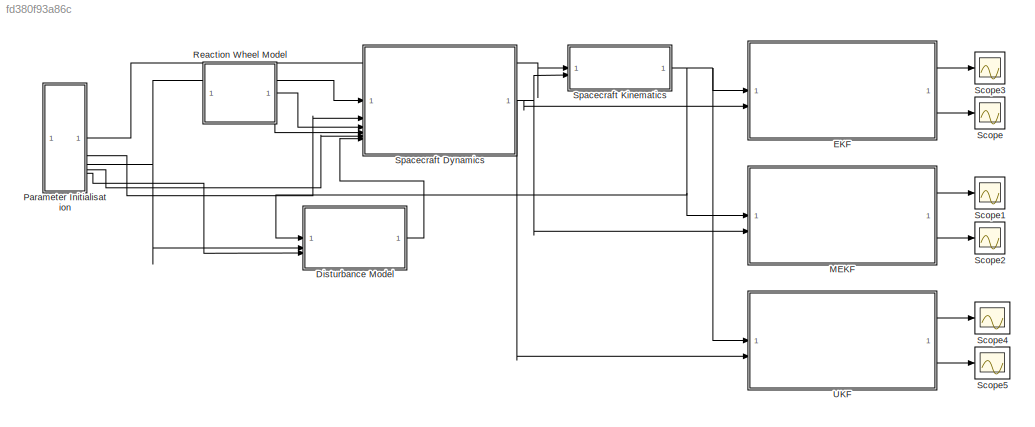
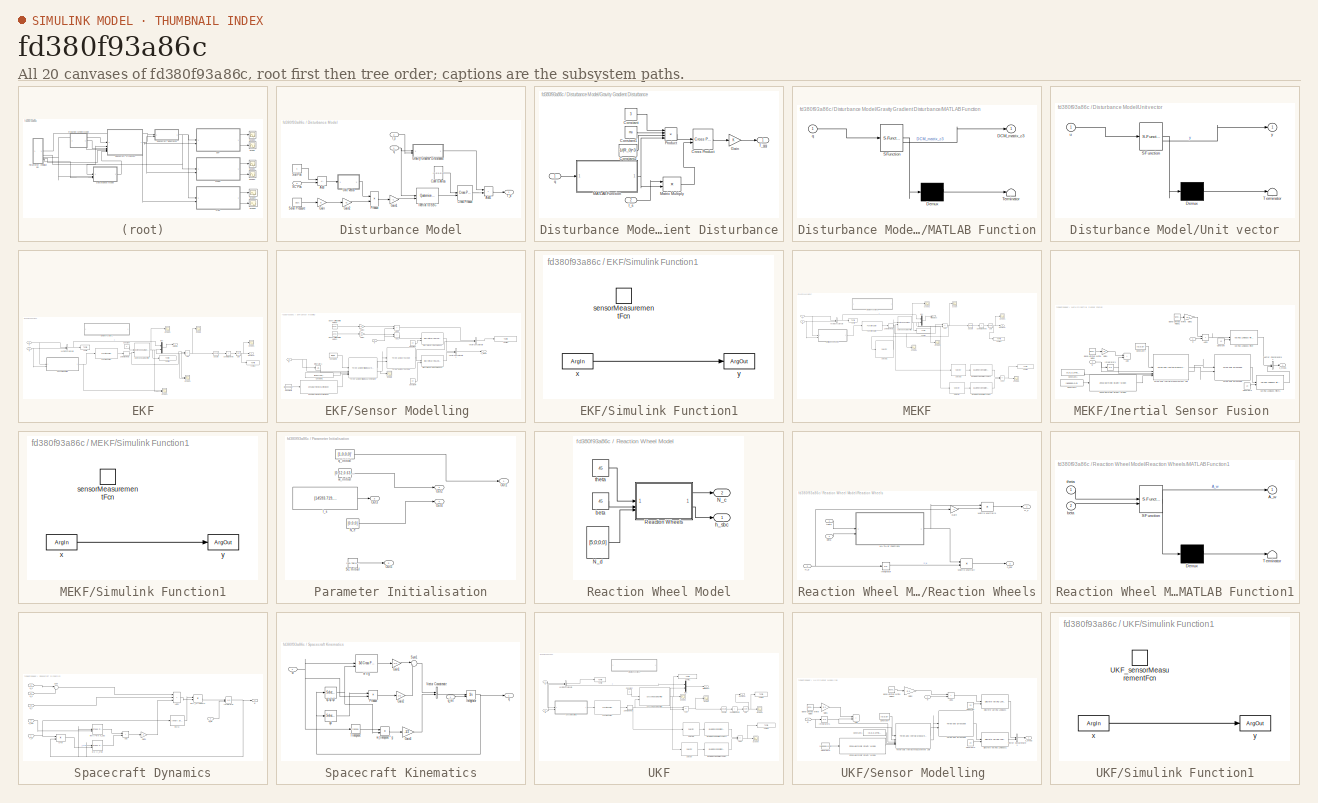
[diagram: thumbnail index - all 20 canvases of the model, root first then tree order]
MODEL slx_fd380f93a86c
KIND model
CONFIG AbsTol = auto
CONFIG EnableMultiTasking = off
CONFIG FixedStep = auto
CONFIG MaxStep = auto
CONFIG MinStep = auto
CONFIG RelTol = 1e-3
CONFIG SampleTimeConstraint = Unconstrained
CONFIG SolverName = VariableStepAuto
CONFIG StartTime = 0.0
CONFIG StopTime = 300
WORKSPACE source: mxarray member
WORKSPACE R_0 = 80000
WORKSPACE Ts = 0.01
WORKSPACE mu = 398600.435507
BLOCK [SubSystem] Disturbance Model
BLOCK [Sum] Disturbance Model/Add
  IconShape = rectangular
  Inputs = +-
BLOCK [Sum] Disturbance Model/Add1
  IconShape = rectangular
BLOCK [Constant] Disturbance Model/CoM to Area
  Value = [0.5;0.5;0]
  VectorParams1D = off
BLOCK [Reference] Disturbance Model/Cross Product  REF=matrix_library/Cross Product
  LibrarySourceBlock = simulink/Matrix\nOperations/Cross Product
  SourceBlock = matrix_library/Cross Product
  SourceType = CrossProduct
BLOCK [Gain] Disturbance Model/Gain
  Gain = q
BLOCK [Gain] Disturbance Model/Gain1
  Gain = -1
BLOCK [Gain] Disturbance Model/Gain2
  Gain = As
BLOCK [SubSystem] Disturbance Model/Gravity Gradient Disturbance
BLOCK [Constant] Disturbance Model/Gravity Gradient Disturbance/Constant
  Value = 3
BLOCK [Constant] Disturbance Model/Gravity Gradient Disturbance/Constant1
  Value = mu
BLOCK [Constant] Disturbance Model/Gravity Gradient Disturbance/Constant2
  Value = 1/(R_0)^3
BLOCK [Reference] Disturbance Model/Gravity Gradient Disturbance/Cross Product  REF=matrix_library/Cross Product
  LibrarySourceBlock = simulink/Matrix\nOperations/Cross Product
  SourceBlock = matrix_library/Cross Product
  SourceType = CrossProduct
BLOCK [Gain] Disturbance Model/Gravity Gradient Disturbance/Gain
  Multiplication = Matrix(K*u)
BLOCK [Inport] Disturbance Model/Gravity Gradient Disturbance/I_s
  Port = 2
BLOCK [SubSystem] Disturbance Model/Gravity Gradient Disturbance/MATLAB Function
  ErrorFcn = Stateflow.Translate.translate
  LibrarySourceBlock = simulink/User-Defined\nFunctions/MATLAB Function
  PermitHierarchicalResolution = ExplicitOnly
  SFBlockType = MATLAB Function
  TreatAsAtomicUnit = on
BLOCK [Demux] Disturbance Model/Gravity Gradient Disturbance/MATLAB Function/ Demux 
  Outputs = 1
BLOCK [S-Function] Disturbance Model/Gravity Gradient Disturbance/MATLAB Function/ SFunction 
  EnableBusSupport = on
  FunctionName = sf_sfun
  PortCounts = [1 2]
  SFcnIsStateOwnerBlock = off
  SFunctionDeploymentMode = off
  Tag = Stateflow S-Function 2
BLOCK [Terminator] Disturbance Model/Gravity Gradient Disturbance/MATLAB Function/ Terminator 
BLOCK [Outport] Disturbance Model/Gravity Gradient Disturbance/MATLAB Function/DCM_matrix_c3
BLOCK [Inport] Disturbance Model/Gravity Gradient Disturbance/MATLAB Function/q
BLOCK [Product] Disturbance Model/Gravity Gradient Disturbance/Matrix Multiply
  Multiplication = Matrix(*)
BLOCK [Product] Disturbance Model/Gravity Gradient Disturbance/Product
  Inputs = 4
BLOCK [Outport] Disturbance Model/Gravity Gradient Disturbance/T_gg
BLOCK [Inport] Disturbance Model/Gravity Gradient Disturbance/q
BLOCK [Inport] Disturbance Model/I_s
  Port = 2
BLOCK [Reference] Disturbance Model/Inertial to SBC  REF=aerolibutil/Quaternion
Rotation
  SourceBlock = aerolibutil/Quaternion\nRotation
  SourceType = Quaternion Rotation
BLOCK [Product] Disturbance Model/Product
BLOCK [Inport] Disturbance Model/SC Pos
  Port = 3
BLOCK [Constant] Disturbance Model/Solar Pressure
  Value = SC/c
BLOCK [Constant] Disturbance Model/Sun Pos
BLOCK [Outport] Disturbance Model/T_d
BLOCK [SubSystem] Disturbance Model/Unit vector
  ErrorFcn = Stateflow.Translate.translate
  LibrarySourceBlock = simulink/User-Defined\nFunctions/MATLAB Function
  PermitHierarchicalResolution = ExplicitOnly
  SFBlockType = MATLAB Function
  TreatAsAtomicUnit = on
BLOCK [Demux] Disturbance Model/Unit vector/ Demux 
  Outputs = 1
BLOCK [S-Function] Disturbance Model/Unit vector/ SFunction 
  EnableBusSupport = on
  FunctionName = sf_sfun
  PortCounts = [1 2]
  SFcnIsStateOwnerBlock = off
  SFunctionDeploymentMode = off
  Tag = Stateflow S-Function 3
BLOCK [Terminator] Disturbance Model/Unit vector/ Terminator 
BLOCK [Inport] Disturbance Model/Unit vector/u
BLOCK [Outport] Disturbance Model/Unit vector/y
BLOCK [Inport] Disturbance Model/q
BLOCK [SubSystem] EKF
BLOCK [Sum] EKF/Add
  IconShape = rectangular
  Inputs = +-
BLOCK [Constant] EKF/Constant
  Value = 0
BLOCK [Reference] EKF/Extended Kalman Filter  REF=sharedTrackingLibrary/Extended Kalman Filter
  LibrarySourceBlock = cstblocks/State Estimation/Extended Kalman Filter
  SourceBlock = sharedTrackingLibrary/Extended Kalman Filter
  SourceType = Extended Kalman Filter
BLOCK [FunctionCaller] EKF/Function Caller
  FunctionPrototype = y = sensorMeasurementFcn(x)
  InputArgumentSpecifications = <Enter example>
  OutputArgumentSpecifications = <Enter example>
BLOCK [Mux] EKF/Mux
  DisplayOption = bar
  Inputs = 2
BLOCK [Outport] EKF/Outputs
BLOCK [Outport] EKF/Residual
  Port = 2
BLOCK [Scope] EKF/Scope
  Floating = off
  NumInputPorts = 1
  ScopeSpecificationString = Simulink.scopes.TimeScopeBlockCfg('CurrentConfiguration', extmgr.ConfigurationSet(extmgr.Configuration('Core','General UI',true),extmgr.Configuration('Core','Source UI',true),extmgr.Configuration('Sources','WiredSimulink',true,'DataLoggingVariableName','ScopeData2'),extmgr.Configuration('Visuals','Time Domain',true,'SerializedDisplays',{struct('MinYLimReal','-0.01301','MaxYLimReal','0.01897','YLab...<+1651ch>
BLOCK [Scope] EKF/Scope1
  Floating = off
  NumInputPorts = 1
  ScopeSpecificationString = Simulink.scopes.TimeScopeBlockCfg('CurrentConfiguration', extmgr.ConfigurationSet(extmgr.Configuration('Core','General UI',true),extmgr.Configuration('Core','Source UI',true),extmgr.Configuration('Sources','WiredSimulink',true,'DataLoggingVariableName','ScopeData3'),extmgr.Configuration('Visuals','Time Domain',true,'SerializedDisplays',{struct('MinYLimReal','-0.000001','MaxYLimReal','0.000013','YL...<+1455ch>
BLOCK [Scope] EKF/Scope2
  Floating = off
  NumInputPorts = 1
  ScopeSpecificationString = Simulink.scopes.TimeScopeBlockCfg('CurrentConfiguration', extmgr.ConfigurationSet(extmgr.Configuration('Core','General UI',true),extmgr.Configuration('Core','Source UI',true),extmgr.Configuration('Sources','WiredSimulink',true,'DataLoggingVariableName','ScopeData4'),extmgr.Configuration('Visuals','Time Domain',true,'SerializedDisplays',{struct('MinYLimReal','-3.69362','MaxYLimReal','1.74866','YLab...<+1709ch>
BLOCK [Scope] EKF/Scope3
  Floating = off
  NumInputPorts = 2
  ScopeSpecificationString = Simulink.scopes.TimeScopeBlockCfg('CurrentConfiguration', extmgr.ConfigurationSet(extmgr.Configuration('Core','General UI',true),extmgr.Configuration('Core','Source UI',true),extmgr.Configuration('Sources','WiredSimulink',true,'DataLoggingVariableName','ScopeData1'),extmgr.Configuration('Visuals','Time Domain',true,'SerializedDisplays',{struct('MinYLimReal','-3.82312','MaxYLimReal','1.76305','YLab...<+2037ch>
BLOCK [Scope] EKF/Scope4
  Floating = off
  NumInputPorts = 2
  ScopeSpecificationString = Simulink.scopes.TimeScopeBlockCfg('CurrentConfiguration', extmgr.ConfigurationSet(extmgr.Configuration('Core','General UI',true),extmgr.Configuration('Core','Source UI',true),extmgr.Configuration('Sources','WiredSimulink',true,'DataLoggingVariableName','ScopeData2'),extmgr.Configuration('Visuals','Time Domain',true,'SerializedDisplays',{struct('MinYLimReal','-1.47581','MaxYLimReal','1.45351','YLab...<+2031ch>
BLOCK [SubSystem] EKF/Sensor Modelling 
BLOCK [Sum] EKF/Sensor Modelling /Add1
  IconShape = rectangular
BLOCK [Sum] EKF/Sensor Modelling /Add2
  IconShape = rectangular
BLOCK [Reference] EKF/Sensor Modelling /Band-Limited White Noise1  REF=simulink/Sources/Band-Limited
White Noise
  SourceBlock = simulink/Sources/Band-Limited\nWhite Noise
  SourceType = Band-Limited White Noise.
BLOCK [Reference] EKF/Sensor Modelling /Band-Limited White Noise2  REF=simulink/Sources/Band-Limited
White Noise
  SourceBlock = simulink/Sources/Band-Limited\nWhite Noise
  SourceType = Band-Limited White Noise.
BLOCK [Constant] EKF/Sensor Modelling /Constant
  Value = 20
BLOCK [Constant] EKF/Sensor Modelling /Constant1
  Value = [6.1847756,0.0016052,-2.59e-05]'
BLOCK [Constant] EKF/Sensor Modelling /Constant2
  Value = [800000,0,0]
BLOCK [Constant] EKF/Sensor Modelling /Constant3
  Value = [0,0,0]'
BLOCK [Constant] EKF/Sensor Modelling /Constant4
  Value = 20
BLOCK [Reference] EKF/Sensor Modelling /Discrete Varying Lowpass  REF=cstblocks/Linear Parameter Varying/Discrete Varying Lowpass
  SourceBlock = cstblocks/Linear Parameter Varying/Discrete Varying Lowpass
  SourceType = Discrete Varying Lowpass
BLOCK [Reference] EKF/Sensor Modelling /Discrete Varying Lowpass1  REF=cstblocks/Linear Parameter Varying/Discrete Varying Lowpass
  SourceBlock = cstblocks/Linear Parameter Varying/Discrete Varying Lowpass
  SourceType = Discrete Varying Lowpass
BLOCK [Gain] EKF/Sensor Modelling /Gain2
  Gain = 0.2
BLOCK [Gain] EKF/Sensor Modelling /Gain3
  Gain = 0.4
BLOCK [Integrator] EKF/Sensor Modelling /Integrator1
BLOCK [Scope] EKF/Sensor Modelling /Scope
  Floating = off
  NumInputPorts = 1
  ScopeSpecificationString = Simulink.scopes.TimeScopeBlockCfg('CurrentConfiguration', extmgr.ConfigurationSet(extmgr.Configuration('Core','General UI',true),extmgr.Configuration('Core','Source UI',true),extmgr.Configuration('Sources','WiredSimulink',true,'DataLoggingVariableName','ScopeData1'),extmgr.Configuration('Visuals','Time Domain',true),extmgr.Configuration('Tools','Plot Navigation',true),extmgr.Configuration('Tools',...<+40ch>
BLOCK [Reference] EKF/Sensor Modelling /Three-axis Gyroscope  REF=aerolibnav/Three-axis Gyroscope
  SourceBlock = aerolibnav/Three-axis Gyroscope
  SourceType = Three-axis Gyroscope
BLOCK [Reference] EKF/Sensor Modelling /Three-axis Inertial Measurement Unit  REF=aerolibnav/Three-axis Inertial
Measurement Unit
  SourceBlock = aerolibnav/Three-axis Inertial\nMeasurement Unit
  SourceType = Three-axis Inertial Measurement Unit
BLOCK [ToFile] EKF/Sensor Modelling /To File2
  Filename = EKF_measurement_data.mat
BLOCK [Concatenate] EKF/Sensor Modelling /Vector Concatenate
BLOCK [Concatenate] EKF/Sensor Modelling /Vector Concatenate1
BLOCK [Reference] EKF/Sensor Modelling /Zonal Harmonic Gravity Model  REF=aerolibgravity2/Zonal Harmonic Gravity Model
  SourceBlock = aerolibgravity2/Zonal Harmonic Gravity Model
  SourceType = Zonal Harmonic Gravity Model
BLOCK [Inport] EKF/Sensor Modelling /q
BLOCK [Inport] EKF/Sensor Modelling /w
  Port = 2
BLOCK [Outport] EKF/Sensor Modelling /x_meas
BLOCK [SubSystem] EKF/Simulink Function1
  TreatAsAtomicUnit = on
BLOCK [TriggerPort] EKF/Simulink Function1/sensorMeasurementFcn
  FunctionName = sensorMeasurementFcn
  FunctionVisibility = scoped
  IsSimulinkFunction = on
  StatesWhenEnabling = held
  TriggerType = function-call
  VariantControl = (inherit)
BLOCK [ArgIn] EKF/Simulink Function1/x
  ArgumentName = x
  DisableCoverage = on
  PortDimensions = 7
BLOCK [ArgOut] EKF/Simulink Function1/y
  ArgumentName = y
  DisableCoverage = on
  PortDimensions = 7
BLOCK [Sqrt] EKF/Sqrt
BLOCK [Math] EKF/Square
  Operator = square
BLOCK [Sum] EKF/Sum of Elements
  IconShape = rectangular
  Inputs = +
BLOCK [ToFile] EKF/To File
  Filename = EKF_states.mat
BLOCK [ToFile] EKF/To File1
  Filename = EKF_estimated_states.mat
BLOCK [ToFile] EKF/To File2
  Filename = EKF_residual.mat
BLOCK [Concatenate] EKF/Vector Concatenate
BLOCK [ZeroOrderHold] EKF/Zero-Order Hold
  SampleTime = 0.01
BLOCK [Inport] EKF/q
BLOCK [Inport] EKF/w
  Port = 2
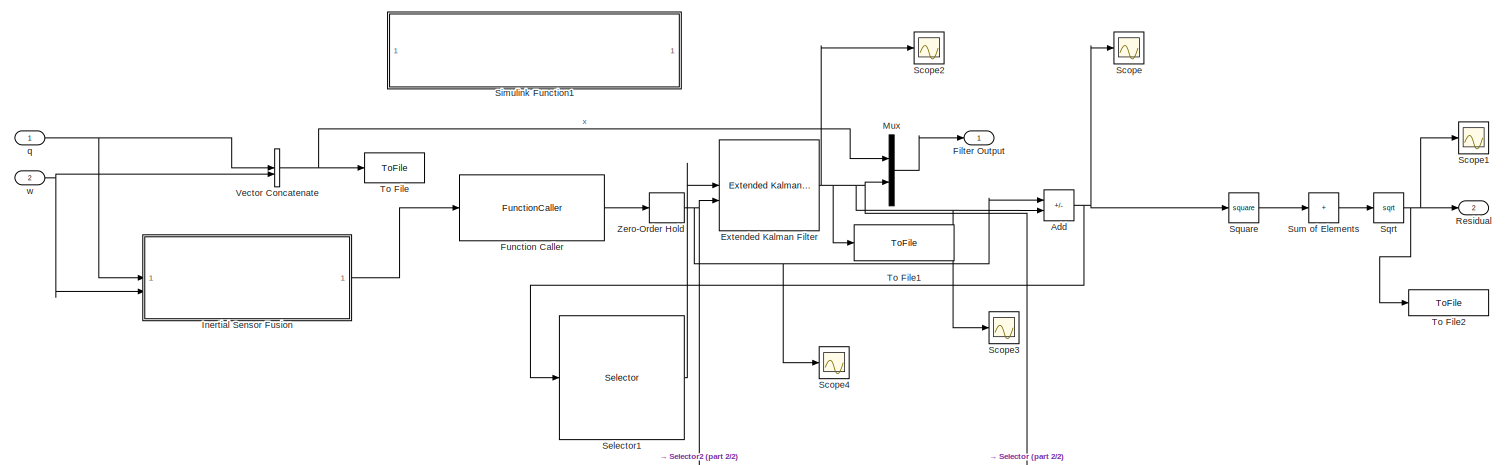
[diagram: MEKF - part 1/2, full width, middle band]
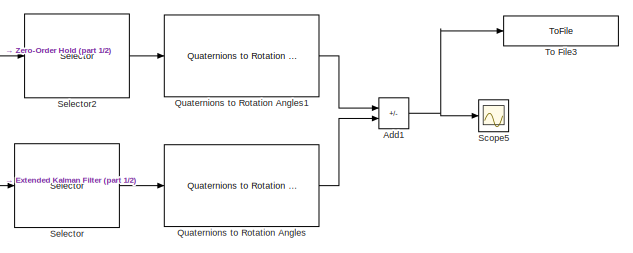
[diagram: MEKF - part 2/2, bottom right region]
BLOCK [SubSystem] MEKF
BLOCK [Sum] MEKF/Add
  IconShape = rectangular
  Inputs = +-
BLOCK [Sum] MEKF/Add1
  IconShape = rectangular
  Inputs = +-
BLOCK [Reference] MEKF/Extended Kalman Filter  REF=sharedTrackingLibrary/Extended Kalman Filter
  LibrarySourceBlock = cstblocks/State Estimation/Extended Kalman Filter
  SourceBlock = sharedTrackingLibrary/Extended Kalman Filter
  SourceType = Extended Kalman Filter
BLOCK [Outport] MEKF/Filter Output
BLOCK [FunctionCaller] MEKF/Function Caller
  FunctionPrototype = y = sensorMeasurementFcn(x)
  InputArgumentSpecifications = <Enter example>
  OutputArgumentSpecifications = <Enter example>
BLOCK [SubSystem] MEKF/Inertial Sensor Fusion 
BLOCK [Sum] MEKF/Inertial Sensor Fusion /Add
  IconShape = rectangular
BLOCK [Sum] MEKF/Inertial Sensor Fusion /Add1
  IconShape = rectangular
BLOCK [Reference] MEKF/Inertial Sensor Fusion /Band-Limited White Noise  REF=simulink/Sources/Band-Limited
White Noise
  SourceBlock = simulink/Sources/Band-Limited\nWhite Noise
  SourceType = Band-Limited White Noise.
BLOCK [Reference] MEKF/Inertial Sensor Fusion /Band-Limited White Noise1  REF=simulink/Sources/Band-Limited
White Noise
  SourceBlock = simulink/Sources/Band-Limited\nWhite Noise
  SourceType = Band-Limited White Noise.
BLOCK [Constant] MEKF/Inertial Sensor Fusion /Constant
  Value = 10
BLOCK [Constant] MEKF/Inertial Sensor Fusion /Constant1
  Value = [0,0,3.2778]'
BLOCK [Constant] MEKF/Inertial Sensor Fusion /Constant2
  Value = [800000,0,0]
BLOCK [Constant] MEKF/Inertial Sensor Fusion /Constant3
  Value = 10
BLOCK [Constant] MEKF/Inertial Sensor Fusion /Constant4
  Value = [0,0,0]'
BLOCK [Gain] MEKF/Inertial Sensor Fusion /Gain1
  Gain = 0.1
BLOCK [Gain] MEKF/Inertial Sensor Fusion /Gain2
  Gain = 0.1
BLOCK [Integrator] MEKF/Inertial Sensor Fusion /Integrator1
BLOCK [Reference] MEKF/Inertial Sensor Fusion /Three-axis Gyroscope  REF=aerolibnav/Three-axis Gyroscope
  SourceBlock = aerolibnav/Three-axis Gyroscope
  SourceType = Three-axis Gyroscope
BLOCK [Reference] MEKF/Inertial Sensor Fusion /Three-axis Inertial Measurement Unit  REF=aerolibnav/Three-axis Inertial
Measurement Unit
  SourceBlock = aerolibnav/Three-axis Inertial\nMeasurement Unit
  SourceType = Three-axis Inertial Measurement Unit
BLOCK [Reference] MEKF/Inertial Sensor Fusion /Varying Lowpass Filter  REF=cstblocks/Linear Parameter Varying/Varying Lowpass Filter
  SourceBlock = cstblocks/Linear Parameter Varying/Varying Lowpass Filter
  SourceType = Varying Lowpass Filter
BLOCK [Reference] MEKF/Inertial Sensor Fusion /Varying Lowpass Filter1  REF=cstblocks/Linear Parameter Varying/Varying Lowpass Filter
  SourceBlock = cstblocks/Linear Parameter Varying/Varying Lowpass Filter
  SourceType = Varying Lowpass Filter
BLOCK [Concatenate] MEKF/Inertial Sensor Fusion /Vector Concatenate1
BLOCK [Reference] MEKF/Inertial Sensor Fusion /Zonal Harmonic Gravity Model  REF=aerolibgravity2/Zonal Harmonic Gravity Model
  SourceBlock = aerolibgravity2/Zonal Harmonic Gravity Model
  SourceType = Zonal Harmonic Gravity Model
BLOCK [Inport] MEKF/Inertial Sensor Fusion /q
BLOCK [Inport] MEKF/Inertial Sensor Fusion /w
  Port = 2
BLOCK [Outport] MEKF/Inertial Sensor Fusion /x_meas
BLOCK [Mux] MEKF/Mux
  DisplayOption = bar
  Inputs = 2
BLOCK [Reference] MEKF/Quaternions to Rotation Angles  REF=sharedtransform/Quaternions to Rotation Angles
  AttributesFormatString = Rotation Order: %<rotationOrder>
  LibrarySourceBlock = aerolibtransform2/Quaternions to Rotation Angles
  SourceBlock = sharedtransform/Quaternions to Rotation Angles
  SourceType = Quat2Ang
BLOCK [Reference] MEKF/Quaternions to Rotation Angles1  REF=sharedtransform/Quaternions to Rotation Angles
  AttributesFormatString = Rotation Order: %<rotationOrder>
  LibrarySourceBlock = aerolibtransform2/Quaternions to Rotation Angles
  SourceBlock = sharedtransform/Quaternions to Rotation Angles
  SourceType = Quat2Ang
BLOCK [Outport] MEKF/Residual
  Port = 2
BLOCK [Scope] MEKF/Scope
  Floating = off
  NumInputPorts = 1
  ScopeSpecificationString = Simulink.scopes.TimeScopeBlockCfg('CurrentConfiguration', extmgr.ConfigurationSet(extmgr.Configuration('Core','General UI',true),extmgr.Configuration('Core','Source UI',true),extmgr.Configuration('Sources','WiredSimulink',true,'DataLoggingVariableName','ScopeData2'),extmgr.Configuration('Visuals','Time Domain',true,'SerializedDisplays',{struct('MinYLimReal','-0.00013','MaxYLimReal','0.00015','YLab...<+1651ch>
BLOCK [Scope] MEKF/Scope1
  Floating = off
  NumInputPorts = 1
  ScopeSpecificationString = Simulink.scopes.TimeScopeBlockCfg('CurrentConfiguration', extmgr.ConfigurationSet(extmgr.Configuration('Core','General UI',true),extmgr.Configuration('Core','Source UI',true),extmgr.Configuration('Sources','WiredSimulink',true,'DataLoggingVariableName','ScopeData3'),extmgr.Configuration('Visuals','Time Domain',true,'SerializedDisplays',{struct('MinYLimReal','-0.00001','MaxYLimReal','0.00011','YLab...<+1409ch>
BLOCK [Scope] MEKF/Scope2
  Floating = off
  NumInputPorts = 1
  ScopeSpecificationString = Simulink.scopes.TimeScopeBlockCfg('CurrentConfiguration', extmgr.ConfigurationSet(extmgr.Configuration('Core','General UI',true),extmgr.Configuration('Core','Source UI',true),extmgr.Configuration('Sources','WiredSimulink',true,'DataLoggingVariableName','ScopeData4'),extmgr.Configuration('Visuals','Time Domain',true,'SerializedDisplays',{struct('MinYLimReal','-3.11006','MaxYLimReal','1.4836','YLabe...<+1736ch>
BLOCK [Scope] MEKF/Scope3
  Floating = off
  NumInputPorts = 1
  ScopeSpecificationString = Simulink.scopes.TimeScopeBlockCfg('CurrentConfiguration', extmgr.ConfigurationSet(extmgr.Configuration('Core','General UI',true),extmgr.Configuration('Core','Source UI',true),extmgr.Configuration('Sources','WiredSimulink',true,'DataLoggingVariableName','ScopeData3'),extmgr.Configuration('Visuals','Time Domain',true,'SerializedDisplays',{struct('MinYLimReal','-3.11006','MaxYLimReal','1.4836','YLabe...<+1735ch>
BLOCK [Scope] MEKF/Scope4
  Floating = off
  NumInputPorts = 1
  ScopeSpecificationString = Simulink.scopes.TimeScopeBlockCfg('CurrentConfiguration', extmgr.ConfigurationSet(extmgr.Configuration('Core','General UI',true),extmgr.Configuration('Core','Source UI',true),extmgr.Configuration('Sources','WiredSimulink',true,'DataLoggingVariableName','ScopeData1'),extmgr.Configuration('Visuals','Time Domain',true,'SerializedDisplays',{struct('MinYLimReal','-3.11013','MaxYLimReal','1.48361','YLab...<+1659ch>
BLOCK [Scope] MEKF/Scope5
  Floating = off
  NumInputPorts = 1
  ScopeSpecificationString = Simulink.scopes.TimeScopeBlockCfg('CurrentConfiguration', extmgr.ConfigurationSet(extmgr.Configuration('Core','General UI',true),extmgr.Configuration('Core','Source UI',true),extmgr.Configuration('Sources','WiredSimulink',true,'DataLoggingVariableName','ScopeData3'),extmgr.Configuration('Visuals','Time Domain',true,'SerializedDisplays',{struct('MinYLimReal','-0.000038','MaxYLimReal','0.000047','YL...<+1404ch>
BLOCK [Selector] MEKF/Selector
  IndexOptions = Index vector (dialog)
  Indices = [1 2 3 4]
  InputPortWidth = 7
  OutputSizes = 1
BLOCK [Selector] MEKF/Selector1
  IndexOptions = Index vector (dialog)
  Indices = [1 2 3 4]
  InputPortWidth = 7
  OutputSizes = 1
BLOCK [Selector] MEKF/Selector2
  IndexOptions = Index vector (dialog)
  Indices = [1 2 3 4]
  InputPortWidth = 7
  OutputSizes = 1
BLOCK [SubSystem] MEKF/Simulink Function1
  TreatAsAtomicUnit = on
BLOCK [TriggerPort] MEKF/Simulink Function1/sensorMeasurementFcn
  FunctionName = sensorMeasurementFcn
  FunctionVisibility = scoped
  IsSimulinkFunction = on
  StatesWhenEnabling = held
  TriggerType = function-call
  VariantControl = (inherit)
BLOCK [ArgIn] MEKF/Simulink Function1/x
  ArgumentName = x
  DisableCoverage = on
  PortDimensions = 7
BLOCK [ArgOut] MEKF/Simulink Function1/y
  ArgumentName = y
  DisableCoverage = on
  PortDimensions = 7
BLOCK [Sqrt] MEKF/Sqrt
BLOCK [Math] MEKF/Square
  Operator = square
BLOCK [Sum] MEKF/Sum of Elements
  IconShape = rectangular
  Inputs = +
BLOCK [ToFile] MEKF/To File
  Filename = MEKF_states.mat
BLOCK [ToFile] MEKF/To File1
  Filename = MEKF_estimated_states.mat
BLOCK [ToFile] MEKF/To File2
  Filename = MEKF_residual.mat
BLOCK [ToFile] MEKF/To File3
  Filename = QUEST_attitude_error.mat
BLOCK [Concatenate] MEKF/Vector Concatenate
BLOCK [ZeroOrderHold] MEKF/Zero-Order Hold
  SampleTime = 0.01
BLOCK [Inport] MEKF/q
BLOCK [Inport] MEKF/w
  Port = 2
BLOCK [SubSystem] Parameter Initialisation
BLOCK [Constant] Parameter Initialisation/I_s
  Value = [14593.719,216.748,17.683967;216.748,34472.27,9.1844946;17.683967,9.1844946,42748.593]
  VectorParams1D = off
BLOCK [Constant] Parameter Initialisation/N_e
  Value = [0;0;0]
  VectorParams1D = off
BLOCK [Outport] Parameter Initialisation/Out1
BLOCK [Outport] Parameter Initialisation/Out2
  Port = 2
BLOCK [Outport] Parameter Initialisation/Out3
  Port = 3
BLOCK [Outport] Parameter Initialisation/Out4
  Port = 4
BLOCK [Outport] Parameter Initialisation/Out5
  Port = 5
BLOCK [Constant] Parameter Initialisation/SC Initial
  Value = [151.7E6;0;0]
  VectorParams1D = off
BLOCK [Constant] Parameter Initialisation/q_initial
  Value = [1,0,0,0]'
BLOCK [Constant] Parameter Initialisation/w_initial
  Value = [0.52,0.63,0.58]'
  VectorParams1D = off
BLOCK [SubSystem] Reaction Wheel Model
BLOCK [Outport] Reaction Wheel Model/N_c
  Port = 2
BLOCK [Constant] Reaction Wheel Model/N_d
  Value = [5;0;0;0]
  VectorParams1D = off
BLOCK [SubSystem] Reaction Wheel Model/Reaction Wheels
BLOCK [Gain] Reaction Wheel Model/Reaction Wheels/Gain
  Gain = -1
BLOCK [Integrator] Reaction Wheel Model/Reaction Wheels/Integrator
BLOCK [SubSystem] Reaction Wheel Model/Reaction Wheels/MATLAB Function1
  ErrorFcn = Stateflow.Translate.translate
  LibrarySourceBlock = simulink/User-Defined\nFunctions/MATLAB Function
  PermitHierarchicalResolution = ExplicitOnly
  SFBlockType = MATLAB Function
  TreatAsAtomicUnit = on
BLOCK [Demux] Reaction Wheel Model/Reaction Wheels/MATLAB Function1/ Demux 
  Outputs = 1
BLOCK [S-Function] Reaction Wheel Model/Reaction Wheels/MATLAB Function1/ SFunction 
  EnableBusSupport = on
  FunctionName = sf_sfun
  PortCounts = [2 2]
  SFcnIsStateOwnerBlock = off
  SFunctionDeploymentMode = off
  Tag = Stateflow S-Function 1
BLOCK [Terminator] Reaction Wheel Model/Reaction Wheels/MATLAB Function1/ Terminator 
BLOCK [Outport] Reaction Wheel Model/Reaction Wheels/MATLAB Function1/A_w
BLOCK [Inport] Reaction Wheel Model/Reaction Wheels/MATLAB Function1/beta
  Port = 2
BLOCK [Inport] Reaction Wheel Model/Reaction Wheels/MATLAB Function1/theta
BLOCK [Product] Reaction Wheel Model/Reaction Wheels/Matrix Multiply
  Multiplication = Matrix(*)
BLOCK [Product] Reaction Wheel Model/Reaction Wheels/Matrix Multiply1
  Multiplication = Matrix(*)
BLOCK [Outport] Reaction Wheel Model/Reaction Wheels/N_c
BLOCK [Inport] Reaction Wheel Model/Reaction Wheels/N_d
  Port = 3
BLOCK [Inport] Reaction Wheel Model/Reaction Wheels/beta
  Port = 2
BLOCK [Outport] Reaction Wheel Model/Reaction Wheels/h_sbc
  Port = 2
BLOCK [Inport] Reaction Wheel Model/Reaction Wheels/theta
BLOCK [Constant] Reaction Wheel Model/beta
  Value = 45
BLOCK [Outport] Reaction Wheel Model/h_sbc
BLOCK [Constant] Reaction Wheel Model/theta
  Value = 45
BLOCK [Scope] Scope
  Floating = off
  NumInputPorts = 1
  ScopeSpecificationString = Simulink.scopes.TimeScopeBlockCfg('CurrentConfiguration', extmgr.ConfigurationSet(extmgr.Configuration('Core','General UI',true),extmgr.Configuration('Core','Source UI',true),extmgr.Configuration('Sources','WiredSimulink',true,'DataLoggingVariableName','ScopeData1'),extmgr.Configuration('Visuals','Time Domain',true,'SerializedDisplays',{struct('MinYLimReal','-0.000001','MaxYLimReal','0.000013','YL...<+1709ch>
BLOCK [Scope] Scope1
  Floating = off
  NumInputPorts = 1
  ScopeSpecificationString = Simulink.scopes.TimeScopeBlockCfg('CurrentConfiguration', extmgr.ConfigurationSet(extmgr.Configuration('Core','General UI',true),extmgr.Configuration('Core','Source UI',true),extmgr.Configuration('Sources','WiredSimulink',true,'DataLoggingVariableName','ScopeData2'),extmgr.Configuration('Visuals','Time Domain',true,'SerializedDisplays',{struct('MinYLimReal','-1.28483','MaxYLimReal','1.30857','YLab...<+1908ch>
BLOCK [Scope] Scope2
  Floating = off
  NumInputPorts = 1
  ScopeSpecificationString = Simulink.scopes.TimeScopeBlockCfg('CurrentConfiguration', extmgr.ConfigurationSet(extmgr.Configuration('Core','General UI',true),extmgr.Configuration('Core','Source UI',true),extmgr.Configuration('Sources','WiredSimulink',true,'DataLoggingVariableName','ScopeData3'),extmgr.Configuration('Visuals','Time Domain',true,'SerializedDisplays',{struct('MinYLimReal','-0.00001','MaxYLimReal','0.00011','YLab...<+1433ch>
BLOCK [Scope] Scope3
  Floating = off
  NumInputPorts = 1
  ScopeSpecificationString = Simulink.scopes.TimeScopeBlockCfg('CurrentConfiguration', extmgr.ConfigurationSet(extmgr.Configuration('Core','General UI',true),extmgr.Configuration('Core','Source UI',true),extmgr.Configuration('Sources','WiredSimulink',true,'DataLoggingVariableName','out','DataLogging',true,'DataLoggingSaveFormat','StructureWithTime'),extmgr.Configuration('Visuals','Time Domain',true,'SerializedDisplays',{struc...<+2078ch>
BLOCK [Scope] Scope4
  Floating = off
  NumInputPorts = 1
  ScopeSpecificationString = Simulink.scopes.TimeScopeBlockCfg('CurrentConfiguration', extmgr.ConfigurationSet(extmgr.Configuration('Core','General UI',true),extmgr.Configuration('Core','Source UI',true),extmgr.Configuration('Sources','WiredSimulink',true,'DataLoggingVariableName','ScopeData3','DataLoggingSaveFormat','Array','DataLoggingDecimation','1'),extmgr.Configuration('Visuals','Time Domain',true,'SerializedDisplays',{s...<+2095ch>
BLOCK [Scope] Scope5
  Floating = off
  NumInputPorts = 1
  ScopeSpecificationString = Simulink.scopes.TimeScopeBlockCfg('CurrentConfiguration', extmgr.ConfigurationSet(extmgr.Configuration('Core','General UI',true),extmgr.Configuration('Core','Source UI',true),extmgr.Configuration('Sources','WiredSimulink',true,'DataLoggingVariableName','ScopeData4'),extmgr.Configuration('Visuals','Time Domain',true,'SerializedDisplays',{struct('MinYLimReal','-0.00001','MaxYLimReal','0.00011','YLab...<+1397ch>
BLOCK [SubSystem] Spacecraft Dynamics
BLOCK [Sum] Spacecraft Dynamics/Add
  IconShape = rectangular
BLOCK [Sum] Spacecraft Dynamics/Add1
  IconShape = rectangular
  Inputs = +++
BLOCK [Gain] Spacecraft Dynamics/Gain1
  Gain = -1
BLOCK [Inport] Spacecraft Dynamics/I_s
BLOCK [Integrator] Spacecraft Dynamics/Integrator
  InitialConditionSource = external
BLOCK [Product] Spacecraft Dynamics/Is*w
  Multiplication = Matrix(*)
BLOCK [Inport] Spacecraft Dynamics/N_c
  Port = 4
BLOCK [Inport] Spacecraft Dynamics/N_d
  Port = 6
BLOCK [Inport] Spacecraft Dynamics/N_e
  Port = 5
BLOCK [Sum] Spacecraft Dynamics/Sum
  Inputs = |++
BLOCK [Inport] Spacecraft Dynamics/h_sbc
  Port = 3
BLOCK [Reference] Spacecraft Dynamics/inv(I)*w x h_sbc  REF=matrix_library/Cross Product
  LibrarySourceBlock = simulink/Matrix\nOperations/Cross Product
  SourceBlock = matrix_library/Cross Product
  SourceType = CrossProduct
BLOCK [Product] Spacecraft Dynamics/inv(I_s)*(inputs)
  Multiplication = Matrix(*)
BLOCK [Reference] Spacecraft Dynamics/inv(s)  REF=aerolibutil/Invert 
3x3 Matrix
  SourceBlock = aerolibutil/Invert \n3x3 Matrix
  SourceType = Invert 3x3 Matrix
BLOCK [Outport] Spacecraft Dynamics/w
BLOCK [Reference] Spacecraft Dynamics/w x (I_s*w)  REF=matrix_library/Cross Product
  LibrarySourceBlock = simulink/Matrix\nOperations/Cross Product
  SourceBlock = matrix_library/Cross Product
  SourceType = CrossProduct
BLOCK [Inport] Spacecraft Dynamics/w_init
  NameLocation = left
  Port = 2
BLOCK [SubSystem] Spacecraft Kinematics
BLOCK [Gain] Spacecraft Kinematics/Gain1
  Gain = -1/2
BLOCK [Gain] Spacecraft Kinematics/Gain2
  Gain = 1/2
BLOCK [Gain] Spacecraft Kinematics/Gain3
  Gain = -1/2
BLOCK [Integrator] Spacecraft Kinematics/Integrator
  InitialConditionSource = external
BLOCK [Product] Spacecraft Kinematics/Product
BLOCK [Sum] Spacecraft Kinematics/Sum1
  Inputs = |++
BLOCK [Math] Spacecraft Kinematics/Transpose
  Operator = transpose
BLOCK [Concatenate] Spacecraft Kinematics/Vector Concatenate
BLOCK [Outport] Spacecraft Kinematics/q
BLOCK [Selector] Spacecraft Kinematics/q1 q2 q3
  IndexOptions = Index vector (dialog)
  Indices = [1 2 3]
  InputPortWidth = 4
  OutputSizes = 1
BLOCK [Selector] Spacecraft Kinematics/q4
  IndexOptions = Index vector (dialog)
  Indices = [4]
  InputPortWidth = 4
  OutputSizes = 1
BLOCK [Inport] Spacecraft Kinematics/q_init
BLOCK [Inport] Spacecraft Kinematics/w
  Port = 2
BLOCK [Reference] Spacecraft Kinematics/w x g  REF=sharedutil/3x3 Cross Product
  SourceBlock = sharedutil/3x3 Cross Product
  SourceType = CrossProduct
BLOCK [Product] Spacecraft Kinematics/w_transpose * g
  Multiplication = Matrix(*)
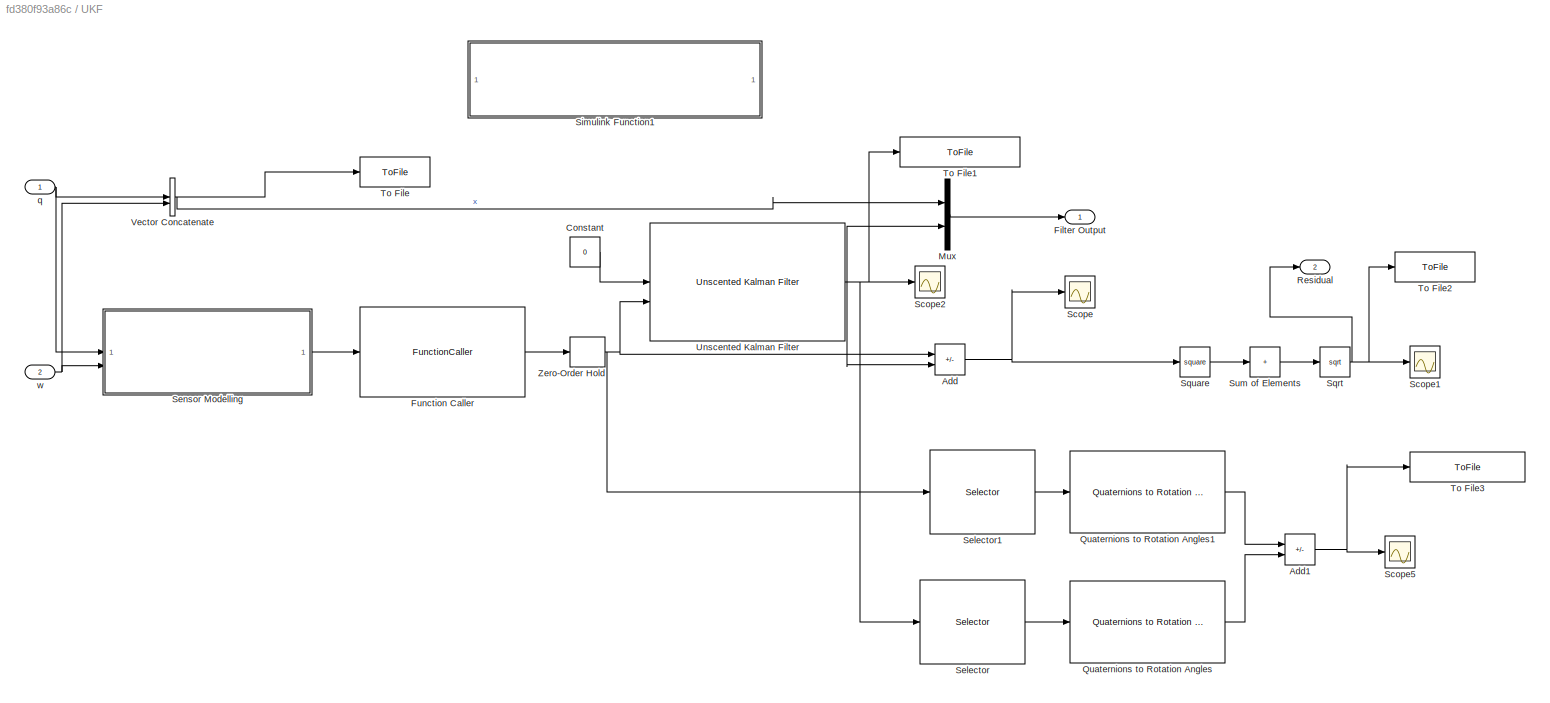
BLOCK [SubSystem] UKF
BLOCK [Sum] UKF/Add
  IconShape = rectangular
  Inputs = +-
BLOCK [Sum] UKF/Add1
  IconShape = rectangular
  Inputs = +-
BLOCK [Constant] UKF/Constant
  Value = 0
BLOCK [Outport] UKF/Filter Output
BLOCK [FunctionCaller] UKF/Function Caller
  FunctionPrototype = y = UKF_sensorMeasurementFcn(x)
  InputArgumentSpecifications = <Enter example>
  OutputArgumentSpecifications = <Enter example>
BLOCK [Mux] UKF/Mux
  DisplayOption = bar
  Inputs = 2
BLOCK [Reference] UKF/Quaternions to Rotation Angles  REF=sharedtransform/Quaternions to Rotation Angles
  AttributesFormatString = Rotation Order: %<rotationOrder>
  LibrarySourceBlock = aerolibtransform2/Quaternions to Rotation Angles
  SourceBlock = sharedtransform/Quaternions to Rotation Angles
  SourceType = Quat2Ang
BLOCK [Reference] UKF/Quaternions to Rotation Angles1  REF=sharedtransform/Quaternions to Rotation Angles
  AttributesFormatString = Rotation Order: %<rotationOrder>
  LibrarySourceBlock = aerolibtransform2/Quaternions to Rotation Angles
  SourceBlock = sharedtransform/Quaternions to Rotation Angles
  SourceType = Quat2Ang
BLOCK [Outport] UKF/Residual
  Port = 2
BLOCK [Scope] UKF/Scope
  Floating = off
  NumInputPorts = 1
  ScopeSpecificationString = Simulink.scopes.TimeScopeBlockCfg('CurrentConfiguration', extmgr.ConfigurationSet(extmgr.Configuration('Core','General UI',true),extmgr.Configuration('Core','Source UI',true),extmgr.Configuration('Sources','WiredSimulink',true,'DataLoggingVariableName','ScopeData2'),extmgr.Configuration('Visuals','Time Domain',true,'SerializedDisplays',{struct('MinYLimReal','-0.00037','MaxYLimReal','0.00036','YLab...<+1622ch>
BLOCK [Scope] UKF/Scope1
  Floating = off
  NumInputPorts = 1
  ScopeSpecificationString = Simulink.scopes.TimeScopeBlockCfg('CurrentConfiguration', extmgr.ConfigurationSet(extmgr.Configuration('Core','General UI',true),extmgr.Configuration('Core','Source UI',true),extmgr.Configuration('Sources','WiredSimulink',true,'DataLoggingVariableName','ScopeData3'),extmgr.Configuration('Visuals','Time Domain',true,'SerializedDisplays',{struct('MinYLimReal','-0.00001','MaxYLimReal','0.00011','YLab...<+1409ch>
BLOCK [Scope] UKF/Scope2
  Floating = off
  NumInputPorts = 1
  ScopeSpecificationString = Simulink.scopes.TimeScopeBlockCfg('CurrentConfiguration', extmgr.ConfigurationSet(extmgr.Configuration('Core','General UI',true),extmgr.Configuration('Core','Source UI',true),extmgr.Configuration('Sources','WiredSimulink',true,'DataLoggingVariableName','ScopeData4'),extmgr.Configuration('Visuals','Time Domain',true,'SerializedDisplays',{struct('MinYLimReal','-5.02965','MaxYLimReal','3.7437','YLabe...<+1707ch>
BLOCK [Scope] UKF/Scope5
  Floating = off
  NumInputPorts = 1
  ScopeSpecificationString = Simulink.scopes.TimeScopeBlockCfg('CurrentConfiguration', extmgr.ConfigurationSet(extmgr.Configuration('Core','General UI',true),extmgr.Configuration('Core','Source UI',true),extmgr.Configuration('Sources','WiredSimulink',true,'DataLoggingVariableName','ScopeData2'),extmgr.Configuration('Visuals','Time Domain',true,'SerializedDisplays',{struct('MinYLimReal','-0.00506','MaxYLimReal','0.04598','YLab...<+1396ch>
BLOCK [Selector] UKF/Selector
  IndexOptions = Index vector (dialog)
  Indices = [1 2 3 4]
  InputPortWidth = 7
  OutputSizes = 1
BLOCK [Selector] UKF/Selector1
  IndexOptions = Index vector (dialog)
  Indices = [1 2 3 4]
  InputPortWidth = 7
  OutputSizes = 1
BLOCK [SubSystem] UKF/Sensor Modelling 
BLOCK [Sum] UKF/Sensor Modelling /Add
  IconShape = rectangular
BLOCK [Sum] UKF/Sensor Modelling /Add1
  IconShape = rectangular
BLOCK [Reference] UKF/Sensor Modelling /Band-Limited White Noise  REF=simulink/Sources/Band-Limited
White Noise
  SourceBlock = simulink/Sources/Band-Limited\nWhite Noise
  SourceType = Band-Limited White Noise.
BLOCK [Reference] UKF/Sensor Modelling /Band-Limited White Noise1  REF=simulink/Sources/Band-Limited
White Noise
  SourceBlock = simulink/Sources/Band-Limited\nWhite Noise
  SourceType = Band-Limited White Noise.
BLOCK [Constant] UKF/Sensor Modelling /Constant
  Value = 20
BLOCK [Constant] UKF/Sensor Modelling /Constant1
  Value = [0,0,3.2778]'
BLOCK [Constant] UKF/Sensor Modelling /Constant2
  Value = [800000,0,0]
BLOCK [Constant] UKF/Sensor Modelling /Constant3
  Value = 20
BLOCK [Constant] UKF/Sensor Modelling /Constant4
  Value = [0,0,0]'
BLOCK [Reference] UKF/Sensor Modelling /Discrete Varying Lowpass  REF=cstblocks/Linear Parameter Varying/Discrete Varying Lowpass
  SourceBlock = cstblocks/Linear Parameter Varying/Discrete Varying Lowpass
  SourceType = Discrete Varying Lowpass
BLOCK [Reference] UKF/Sensor Modelling /Discrete Varying Lowpass1  REF=cstblocks/Linear Parameter Varying/Discrete Varying Lowpass
  SourceBlock = cstblocks/Linear Parameter Varying/Discrete Varying Lowpass
  SourceType = Discrete Varying Lowpass
BLOCK [Gain] UKF/Sensor Modelling /Gain1
  Gain = 0.1
BLOCK [Gain] UKF/Sensor Modelling /Gain2
  Gain = 0.1
BLOCK [Integrator] UKF/Sensor Modelling /Integrator1
BLOCK [Reference] UKF/Sensor Modelling /Three-axis Gyroscope  REF=aerolibnav/Three-axis Gyroscope
  SourceBlock = aerolibnav/Three-axis Gyroscope
  SourceType = Three-axis Gyroscope
BLOCK [Reference] UKF/Sensor Modelling /Three-axis Inertial Measurement Unit  REF=aerolibnav/Three-axis Inertial
Measurement Unit
  SourceBlock = aerolibnav/Three-axis Inertial\nMeasurement Unit
  SourceType = Three-axis Inertial Measurement Unit
BLOCK [Concatenate] UKF/Sensor Modelling /Vector Concatenate1
BLOCK [Reference] UKF/Sensor Modelling /Zonal Harmonic Gravity Model  REF=aerolibgravity2/Zonal Harmonic Gravity Model
  SourceBlock = aerolibgravity2/Zonal Harmonic Gravity Model
  SourceType = Zonal Harmonic Gravity Model
BLOCK [Inport] UKF/Sensor Modelling /q
BLOCK [Inport] UKF/Sensor Modelling /w
  Port = 2
BLOCK [Outport] UKF/Sensor Modelling /x_meas
BLOCK [SubSystem] UKF/Simulink Function1
  TreatAsAtomicUnit = on
BLOCK [TriggerPort] UKF/Simulink Function1/UKF_sensorMeasurementFcn
  FunctionName = UKF_sensorMeasurementFcn
  FunctionVisibility = scoped
  IsSimulinkFunction = on
  StatesWhenEnabling = held
  TriggerType = function-call
  VariantControl = (inherit)
BLOCK [ArgIn] UKF/Simulink Function1/x
  ArgumentName = x
  DisableCoverage = on
  PortDimensions = 7
BLOCK [ArgOut] UKF/Simulink Function1/y
  ArgumentName = y
  DisableCoverage = on
  PortDimensions = 7
BLOCK [Sqrt] UKF/Sqrt
BLOCK [Math] UKF/Square
  Operator = square
BLOCK [Sum] UKF/Sum of Elements
  IconShape = rectangular
  Inputs = +
BLOCK [ToFile] UKF/To File
  Filename = UKF_states.mat
BLOCK [ToFile] UKF/To File1
  Filename = UKF_estimated_states.mat
BLOCK [ToFile] UKF/To File2
  Filename = UKF_residual.mat
BLOCK [ToFile] UKF/To File3
  Filename = attitude_error.mat
BLOCK [Reference] UKF/Unscented Kalman Filter  REF=sharedTrackingLibrary/Unscented Kalman Filter
  LibrarySourceBlock = cstblocks/State Estimation/Unscented Kalman Filter
  SourceBlock = sharedTrackingLibrary/Unscented Kalman Filter
  SourceType = Unscented Kalman Filter
BLOCK [Concatenate] UKF/Vector Concatenate
BLOCK [ZeroOrderHold] UKF/Zero-Order Hold
  SampleTime = 0.01
BLOCK [Inport] UKF/q
BLOCK [Inport] UKF/w
  Port = 2
LINE Disturbance Model/Add1:1 -> Disturbance Model/T_d:1
LINE Disturbance Model/Add:1 -> Disturbance Model/Unit vector:1
LINE Disturbance Model/CoM to Area:1 -> Disturbance Model/Cross Product:1
LINE Disturbance Model/Cross Product:1 -> Disturbance Model/Add1:2
LINE Disturbance Model/Gain1:1 -> Disturbance Model/Inertial to SBC:2
LINE Disturbance Model/Gain2:1 -> Disturbance Model/Product:2
LINE Disturbance Model/Gain:1 -> Disturbance Model/Gain2:1
LINE Disturbance Model/Gravity Gradient Disturbance/Constant1:1 -> Disturbance Model/Gravity Gradient Disturbance/Product:2
LINE Disturbance Model/Gravity Gradient Disturbance/Constant2:1 -> Disturbance Model/Gravity Gradient Disturbance/Product:3
LINE Disturbance Model/Gravity Gradient Disturbance/Constant:1 -> Disturbance Model/Gravity Gradient Disturbance/Product:1
LINE Disturbance Model/Gravity Gradient Disturbance/Cross Product:1 -> Disturbance Model/Gravity Gradient Disturbance/Gain:1
LINE Disturbance Model/Gravity Gradient Disturbance/Gain:1 -> Disturbance Model/Gravity Gradient Disturbance/T_gg:1
LINE Disturbance Model/Gravity Gradient Disturbance/I_s:1 -> Disturbance Model/Gravity Gradient Disturbance/Matrix Multiply:1
NET Disturbance Model/Gravity Gradient Disturbance/MATLAB Function:1 -> Disturbance Model/Gravity Gradient Disturbance/Matrix Multiply:2, Disturbance Model/Gravity Gradient Disturbance/Product:4
LINE Disturbance Model/Gravity Gradient Disturbance/Matrix Multiply:1 -> Disturbance Model/Gravity Gradient Disturbance/Cross Product:2
LINE Disturbance Model/Gravity Gradient Disturbance/Product:1 -> Disturbance Model/Gravity Gradient Disturbance/Cross Product:1
LINE Disturbance Model/Gravity Gradient Disturbance/q:1 -> Disturbance Model/Gravity Gradient Disturbance/MATLAB Function:1
LINE Disturbance Model/Gravity Gradient Disturbance:1 -> Disturbance Model/Add1:1
LINE Disturbance Model/I_s:1 -> Disturbance Model/Gravity Gradient Disturbance:2
LINE Disturbance Model/Inertial to SBC:1 -> Disturbance Model/Cross Product:2
LINE Disturbance Model/Product:1 -> Disturbance Model/Gain1:1
LINE Disturbance Model/SC Pos:1 -> Disturbance Model/Add:2
LINE Disturbance Model/Solar Pressure:1 -> Disturbance Model/Gain:1
LINE Disturbance Model/Sun Pos:1 -> Disturbance Model/Add:1
LINE Disturbance Model/Unit vector:1 -> Disturbance Model/Product:1
NET Disturbance Model/q:1 -> Disturbance Model/Gravity Gradient Disturbance:1, Disturbance Model/Inertial to SBC:1
LINE Disturbance Model:1 -> Spacecraft Dynamics:6
NET EKF/Add:1 -> EKF/Scope:1, EKF/Square:1
LINE EKF/Constant:1 -> EKF/Extended Kalman Filter:1
NET EKF/Extended Kalman Filter:1 -> EKF/Add:2, EKF/Mux:2, EKF/Scope2:1, EKF/Scope3:2, EKF/Scope4:2, EKF/To File1:1
LINE EKF/Function Caller:1 -> EKF/Zero-Order Hold:1
LINE EKF/Mux:1 -> EKF/Outputs:1
LINE EKF/Sensor Modelling /Add1:1 -> EKF/Sensor Modelling /Discrete Varying Lowpass:1
LINE EKF/Sensor Modelling /Add2:1 -> EKF/Sensor Modelling /Vector Concatenate:1
LINE EKF/Sensor Modelling /Band-Limited White Noise1:1 -> EKF/Sensor Modelling /Gain2:1
LINE EKF/Sensor Modelling /Band-Limited White Noise2:1 -> EKF/Sensor Modelling /Gain3:1
LINE EKF/Sensor Modelling /Constant1:1 -> EKF/Sensor Modelling /Three-axis Inertial Measurement Unit:4
LINE EKF/Sensor Modelling /Constant2:1 -> EKF/Sensor Modelling /Zonal Harmonic Gravity Model:1
LINE EKF/Sensor Modelling /Constant3:1 -> EKF/Sensor Modelling /Three-axis Inertial Measurement Unit:1
LINE EKF/Sensor Modelling /Constant4:1 -> EKF/Sensor Modelling /Discrete Varying Lowpass1:2
LINE EKF/Sensor Modelling /Constant:1 -> EKF/Sensor Modelling /Discrete Varying Lowpass:2
LINE EKF/Sensor Modelling /Discrete Varying Lowpass1:1 -> EKF/Sensor Modelling /Vector Concatenate1:2
LINE EKF/Sensor Modelling /Discrete Varying Lowpass:1 -> EKF/Sensor Modelling /Vector Concatenate1:1
LINE EKF/Sensor Modelling /Gain2:1 -> EKF/Sensor Modelling /Add1:1
LINE EKF/Sensor Modelling /Gain3:1 -> EKF/Sensor Modelling /Add2:1
LINE EKF/Sensor Modelling /Integrator1:1 -> EKF/Sensor Modelling /Three-axis Inertial Measurement Unit:3
NET EKF/Sensor Modelling /Three-axis Gyroscope:1 -> EKF/Sensor Modelling /Discrete Varying Lowpass1:1, EKF/Sensor Modelling /Vector Concatenate:2
LINE EKF/Sensor Modelling /Three-axis Inertial Measurement Unit:1 -> EKF/Sensor Modelling /Three-axis Gyroscope:2
NET EKF/Sensor Modelling /Three-axis Inertial Measurement Unit:2 -> EKF/Sensor Modelling /Scope:1, EKF/Sensor Modelling /Three-axis Gyroscope:1
LINE EKF/Sensor Modelling /Vector Concatenate1:1 -> EKF/Sensor Modelling /x_meas:1
LINE EKF/Sensor Modelling /Vector Concatenate:1 -> EKF/Sensor Modelling /To File2:1
LINE EKF/Sensor Modelling /Zonal Harmonic Gravity Model:1 -> EKF/Sensor Modelling /Three-axis Inertial Measurement Unit:5
NET EKF/Sensor Modelling /q:1 -> EKF/Sensor Modelling /Add1:2, EKF/Sensor Modelling /Add2:2
NET EKF/Sensor Modelling /w:1 -> EKF/Sensor Modelling /Integrator1:1, EKF/Sensor Modelling /Three-axis Inertial Measurement Unit:2
NET EKF/Sensor Modelling :1 -> EKF/Function Caller:1, EKF/Scope4:1
LINE EKF/Simulink Function1/x:1 -> EKF/Simulink Function1/y:1
NET EKF/Sqrt:1 -> EKF/Residual:1, EKF/Scope1:1, EKF/To File2:1
LINE EKF/Square:1 -> EKF/Sum of Elements:1
LINE EKF/Sum of Elements:1 -> EKF/Sqrt:1
NET EKF/Vector Concatenate:1 -> EKF/Mux:1, EKF/To File:1
NET EKF/Zero-Order Hold:1 -> EKF/Add:1, EKF/Extended Kalman Filter:2, EKF/Scope3:1
NET EKF/q:1 -> EKF/Sensor Modelling :1, EKF/Vector Concatenate:1
NET EKF/w:1 -> EKF/Sensor Modelling :2, EKF/Vector Concatenate:2
LINE EKF:1 -> Scope3:1
LINE EKF:2 -> Scope:1
NET MEKF/Add1:1 -> MEKF/Scope5:1, MEKF/To File3:1
NET MEKF/Add:1 -> MEKF/Scope:1, MEKF/Selector1:1, MEKF/Square:1
NET MEKF/Extended Kalman Filter:1 -> MEKF/Add:2, MEKF/Mux:2, MEKF/Scope2:1, MEKF/Scope3:1, MEKF/Selector:1, MEKF/To File1:1
LINE MEKF/Function Caller:1 -> MEKF/Zero-Order Hold:1
LINE MEKF/Inertial Sensor Fusion /Add1:1 -> MEKF/Inertial Sensor Fusion /Varying Lowpass Filter:1
LINE MEKF/Inertial Sensor Fusion /Band-Limited White Noise1:1 -> MEKF/Inertial Sensor Fusion /Gain2:1
LINE MEKF/Inertial Sensor Fusion /Band-Limited White Noise:1 -> MEKF/Inertial Sensor Fusion /Gain1:1
LINE MEKF/Inertial Sensor Fusion /Constant1:1 -> MEKF/Inertial Sensor Fusion /Three-axis Inertial Measurement Unit:4
LINE MEKF/Inertial Sensor Fusion /Constant2:1 -> MEKF/Inertial Sensor Fusion /Zonal Harmonic Gravity Model:1
LINE MEKF/Inertial Sensor Fusion /Constant3:1 -> MEKF/Inertial Sensor Fusion /Varying Lowpass Filter1:2
LINE MEKF/Inertial Sensor Fusion /Constant4:1 -> MEKF/Inertial Sensor Fusion /Three-axis Inertial Measurement Unit:1
LINE MEKF/Inertial Sensor Fusion /Constant:1 -> MEKF/Inertial Sensor Fusion /Varying Lowpass Filter:2
LINE MEKF/Inertial Sensor Fusion /Gain1:1 -> MEKF/Inertial Sensor Fusion /Add:1
LINE MEKF/Inertial Sensor Fusion /Gain2:1 -> MEKF/Inertial Sensor Fusion /Add1:1
NET MEKF/Inertial Sensor Fusion /Integrator1:1 -> MEKF/Inertial Sensor Fusion /Add:2, MEKF/Inertial Sensor Fusion /Three-axis Inertial Measurement Unit:3
LINE MEKF/Inertial Sensor Fusion /Three-axis Gyroscope:1 -> MEKF/Inertial Sensor Fusion /Varying Lowpass Filter1:1
LINE MEKF/Inertial Sensor Fusion /Three-axis Inertial Measurement Unit:1 -> MEKF/Inertial Sensor Fusion /Three-axis Gyroscope:2
LINE MEKF/Inertial Sensor Fusion /Three-axis Inertial Measurement Unit:2 -> MEKF/Inertial Sensor Fusion /Three-axis Gyroscope:1
LINE MEKF/Inertial Sensor Fusion /Varying Lowpass Filter1:1 -> MEKF/Inertial Sensor Fusion /Vector Concatenate1:2
LINE MEKF/Inertial Sensor Fusion /Varying Lowpass Filter:1 -> MEKF/Inertial Sensor Fusion /Vector Concatenate1:1
LINE MEKF/Inertial Sensor Fusion /Vector Concatenate1:1 -> MEKF/Inertial Sensor Fusion /x_meas:1
LINE MEKF/Inertial Sensor Fusion /Zonal Harmonic Gravity Model:1 -> MEKF/Inertial Sensor Fusion /Three-axis Inertial Measurement Unit:5
LINE MEKF/Inertial Sensor Fusion /q:1 -> MEKF/Inertial Sensor Fusion /Add1:2
NET MEKF/Inertial Sensor Fusion /w:1 -> MEKF/Inertial Sensor Fusion /Integrator1:1, MEKF/Inertial Sensor Fusion /Three-axis Inertial Measurement Unit:2
LINE MEKF/Inertial Sensor Fusion :1 -> MEKF/Function Caller:1
LINE MEKF/Mux:1 -> MEKF/Filter Output:1
LINE MEKF/Quaternions to Rotation Angles1:1 -> MEKF/Add1:1
LINE MEKF/Quaternions to Rotation Angles:1 -> MEKF/Add1:2
LINE MEKF/Selector1:1 -> MEKF/Extended Kalman Filter:1
LINE MEKF/Selector2:1 -> MEKF/Quaternions to Rotation Angles1:1
LINE MEKF/Selector:1 -> MEKF/Quaternions to Rotation Angles:1
LINE MEKF/Simulink Function1/x:1 -> MEKF/Simulink Function1/y:1
NET MEKF/Sqrt:1 -> MEKF/Residual:1, MEKF/Scope1:1, MEKF/To File2:1
LINE MEKF/Square:1 -> MEKF/Sum of Elements:1
LINE MEKF/Sum of Elements:1 -> MEKF/Sqrt:1
NET MEKF/Vector Concatenate:1 -> MEKF/Mux:1, MEKF/To File:1
NET MEKF/Zero-Order Hold:1 -> MEKF/Add:1, MEKF/Extended Kalman Filter:2, MEKF/Scope4:1, MEKF/Selector2:1
NET MEKF/q:1 -> MEKF/Inertial Sensor Fusion :1, MEKF/Vector Concatenate:1
NET MEKF/w:1 -> MEKF/Inertial Sensor Fusion :2, MEKF/Vector Concatenate:2
LINE MEKF:1 -> Scope1:1
LINE MEKF:2 -> Scope2:1
LINE Parameter Initialisation/I_s:1 -> Parameter Initialisation/Out3:1
LINE Parameter Initialisation/N_e:1 -> Parameter Initialisation/Out4:1
LINE Parameter Initialisation/SC Initial:1 -> Parameter Initialisation/Out5:1
LINE Parameter Initialisation/q_initial:1 -> Parameter Initialisation/Out1:1
LINE Parameter Initialisation/w_initial:1 -> Parameter Initialisation/Out2:1
LINE Parameter Initialisation:1 -> Spacecraft Kinematics:1
LINE Parameter Initialisation:2 -> Spacecraft Dynamics:2
NET Parameter Initialisation:3 -> Disturbance Model:2, Spacecraft Dynamics:1
LINE Parameter Initialisation:4 -> Spacecraft Dynamics:5
LINE Parameter Initialisation:5 -> Disturbance Model:3
LINE Reaction Wheel Model/N_d:1 -> Reaction Wheel Model/Reaction Wheels:3
LINE Reaction Wheel Model/Reaction Wheels/Gain:1 -> Reaction Wheel Model/Reaction Wheels/Matrix Multiply1:2
LINE Reaction Wheel Model/Reaction Wheels/Integrator:1 -> Reaction Wheel Model/Reaction Wheels/Matrix Multiply:2
NET Reaction Wheel Model/Reaction Wheels/MATLAB Function1:1 -> Reaction Wheel Model/Reaction Wheels/Matrix Multiply1:1, Reaction Wheel Model/Reaction Wheels/Matrix Multiply:1
LINE Reaction Wheel Model/Reaction Wheels/Matrix Multiply1:1 -> Reaction Wheel Model/Reaction Wheels/N_c:1
LINE Reaction Wheel Model/Reaction Wheels/Matrix Multiply:1 -> Reaction Wheel Model/Reaction Wheels/h_sbc:1
NET Reaction Wheel Model/Reaction Wheels/N_d:1 -> Reaction Wheel Model/Reaction Wheels/Gain:1, Reaction Wheel Model/Reaction Wheels/Integrator:1
LINE Reaction Wheel Model/Reaction Wheels/beta:1 -> Reaction Wheel Model/Reaction Wheels/MATLAB Function1:2
LINE Reaction Wheel Model/Reaction Wheels/theta:1 -> Reaction Wheel Model/Reaction Wheels/MATLAB Function1:1
LINE Reaction Wheel Model/Reaction Wheels:1 -> Reaction Wheel Model/N_c:1
LINE Reaction Wheel Model/Reaction Wheels:2 -> Reaction Wheel Model/h_sbc:1
LINE Reaction Wheel Model/beta:1 -> Reaction Wheel Model/Reaction Wheels:2
LINE Reaction Wheel Model/theta:1 -> Reaction Wheel Model/Reaction Wheels:1
LINE Reaction Wheel Model:1 -> Spacecraft Dynamics:3
LINE Reaction Wheel Model:2 -> Spacecraft Dynamics:4
LINE Spacecraft Dynamics/Add1:1 -> Spacecraft Dynamics/inv(I_s)*(inputs):2
LINE Spacecraft Dynamics/Add:1 -> Spacecraft Dynamics/Gain1:1
LINE Spacecraft Dynamics/Gain1:1 -> Spacecraft Dynamics/Add1:3
NET Spacecraft Dynamics/I_s:1 -> Spacecraft Dynamics/Is*w:1, Spacecraft Dynamics/inv(s):1
NET Spacecraft Dynamics/Integrator:1 -> Spacecraft Dynamics/Is*w:2, Spacecraft Dynamics/inv(I)*w x h_sbc:1, Spacecraft Dynamics/w x (I_s*w):1, Spacecraft Dynamics/w:1
LINE Spacecraft Dynamics/Is*w:1 -> Spacecraft Dynamics/w x (I_s*w):2
LINE Spacecraft Dynamics/N_c:1 -> Spacecraft Dynamics/Add1:2
LINE Spacecraft Dynamics/N_d:1 -> Spacecraft Dynamics/Sum:1
LINE Spacecraft Dynamics/N_e:1 -> Spacecraft Dynamics/Sum:2
LINE Spacecraft Dynamics/Sum:1 -> Spacecraft Dynamics/Add1:1
LINE Spacecraft Dynamics/h_sbc:1 -> Spacecraft Dynamics/inv(I)*w x h_sbc:2
LINE Spacecraft Dynamics/inv(I)*w x h_sbc:1 -> Spacecraft Dynamics/Add:1
LINE Spacecraft Dynamics/inv(I_s)*(inputs):1 -> Spacecraft Dynamics/Integrator:1
LINE Spacecraft Dynamics/inv(s):1 -> Spacecraft Dynamics/inv(I_s)*(inputs):1
LINE Spacecraft Dynamics/w x (I_s*w):1 -> Spacecraft Dynamics/Add:2
LINE Spacecraft Dynamics/w_init:1 -> Spacecraft Dynamics/Integrator:2
NET Spacecraft Dynamics:1 -> EKF:2, MEKF:2, Spacecraft Kinematics:2, UKF:2
LINE Spacecraft Kinematics/Gain1:1 -> Spacecraft Kinematics/Sum1:1
LINE Spacecraft Kinematics/Gain2:1 -> Spacecraft Kinematics/Sum1:2
LINE Spacecraft Kinematics/Gain3:1 -> Spacecraft Kinematics/Vector Concatenate:2
NET Spacecraft Kinematics/Integrator:1 -> Spacecraft Kinematics/q1 q2 q3:1, Spacecraft Kinematics/q4:1, Spacecraft Kinematics/q:1
LINE Spacecraft Kinematics/Product:1 -> Spacecraft Kinematics/Gain2:1
LINE Spacecraft Kinematics/Sum1:1 -> Spacecraft Kinematics/Vector Concatenate:1
LINE Spacecraft Kinematics/Transpose:1 -> Spacecraft Kinematics/w_transpose * g:1
LINE Spacecraft Kinematics/Vector Concatenate:1 -> Spacecraft Kinematics/Integrator:1
NET Spacecraft Kinematics/q1 q2 q3:1 -> Spacecraft Kinematics/w x g:2, Spacecraft Kinematics/w_transpose * g:2
LINE Spacecraft Kinematics/q4:1 -> Spacecraft Kinematics/Product:1
LINE Spacecraft Kinematics/q_init:1 -> Spacecraft Kinematics/Integrator:2
LINE Spacecraft Kinematics/w x g:1 -> Spacecraft Kinematics/Gain1:1
NET Spacecraft Kinematics/w:1 -> Spacecraft Kinematics/Product:2, Spacecraft Kinematics/Transpose:1, Spacecraft Kinematics/w x g:1
LINE Spacecraft Kinematics/w_transpose * g:1 -> Spacecraft Kinematics/Gain3:1
NET Spacecraft Kinematics:1 -> Disturbance Model:1, EKF:1, MEKF:1, UKF:1
NET UKF/Add1:1 -> UKF/Scope5:1, UKF/To File3:1
NET UKF/Add:1 -> UKF/Scope:1, UKF/Square:1
LINE UKF/Constant:1 -> UKF/Unscented Kalman Filter:1
LINE UKF/Function Caller:1 -> UKF/Zero-Order Hold:1
LINE UKF/Mux:1 -> UKF/Filter Output:1
LINE UKF/Quaternions to Rotation Angles1:1 -> UKF/Add1:1
LINE UKF/Quaternions to Rotation Angles:1 -> UKF/Add1:2
LINE UKF/Selector1:1 -> UKF/Quaternions to Rotation Angles1:1
LINE UKF/Selector:1 -> UKF/Quaternions to Rotation Angles:1
LINE UKF/Sensor Modelling /Add1:1 -> UKF/Sensor Modelling /Discrete Varying Lowpass:1
LINE UKF/Sensor Modelling /Band-Limited White Noise1:1 -> UKF/Sensor Modelling /Gain2:1
LINE UKF/Sensor Modelling /Band-Limited White Noise:1 -> UKF/Sensor Modelling /Gain1:1
LINE UKF/Sensor Modelling /Constant1:1 -> UKF/Sensor Modelling /Three-axis Inertial Measurement Unit:4
LINE UKF/Sensor Modelling /Constant2:1 -> UKF/Sensor Modelling /Zonal Harmonic Gravity Model:1
LINE UKF/Sensor Modelling /Constant3:1 -> UKF/Sensor Modelling /Discrete Varying Lowpass1:2
LINE UKF/Sensor Modelling /Constant4:1 -> UKF/Sensor Modelling /Three-axis Inertial Measurement Unit:1
LINE UKF/Sensor Modelling /Constant:1 -> UKF/Sensor Modelling /Discrete Varying Lowpass:2
LINE UKF/Sensor Modelling /Discrete Varying Lowpass1:1 -> UKF/Sensor Modelling /Vector Concatenate1:2
LINE UKF/Sensor Modelling /Discrete Varying Lowpass:1 -> UKF/Sensor Modelling /Vector Concatenate1:1
LINE UKF/Sensor Modelling /Gain1:1 -> UKF/Sensor Modelling /Add:1
LINE UKF/Sensor Modelling /Gain2:1 -> UKF/Sensor Modelling /Add1:1
NET UKF/Sensor Modelling /Integrator1:1 -> UKF/Sensor Modelling /Add:2, UKF/Sensor Modelling /Three-axis Inertial Measurement Unit:3
LINE UKF/Sensor Modelling /Three-axis Gyroscope:1 -> UKF/Sensor Modelling /Discrete Varying Lowpass1:1
LINE UKF/Sensor Modelling /Three-axis Inertial Measurement Unit:1 -> UKF/Sensor Modelling /Three-axis Gyroscope:2
LINE UKF/Sensor Modelling /Three-axis Inertial Measurement Unit:2 -> UKF/Sensor Modelling /Three-axis Gyroscope:1
LINE UKF/Sensor Modelling /Vector Concatenate1:1 -> UKF/Sensor Modelling /x_meas:1
LINE UKF/Sensor Modelling /Zonal Harmonic Gravity Model:1 -> UKF/Sensor Modelling /Three-axis Inertial Measurement Unit:5
LINE UKF/Sensor Modelling /q:1 -> UKF/Sensor Modelling /Add1:2
NET UKF/Sensor Modelling /w:1 -> UKF/Sensor Modelling /Integrator1:1, UKF/Sensor Modelling /Three-axis Inertial Measurement Unit:2
LINE UKF/Sensor Modelling :1 -> UKF/Function Caller:1
LINE UKF/Simulink Function1/x:1 -> UKF/Simulink Function1/y:1
NET UKF/Sqrt:1 -> UKF/Residual:1, UKF/Scope1:1, UKF/To File2:1
LINE UKF/Square:1 -> UKF/Sum of Elements:1
LINE UKF/Sum of Elements:1 -> UKF/Sqrt:1
NET UKF/Unscented Kalman Filter:1 -> UKF/Add:2, UKF/Mux:2, UKF/Scope2:1, UKF/Selector:1, UKF/To File1:1
NET UKF/Vector Concatenate:1 -> UKF/Mux:1, UKF/To File:1
NET UKF/Zero-Order Hold:1 -> UKF/Add:1, UKF/Selector1:1, UKF/Unscented Kalman Filter:2
NET UKF/q:1 -> UKF/Sensor Modelling :1, UKF/Vector Concatenate:1
NET UKF/w:1 -> UKF/Sensor Modelling :2, UKF/Vector Concatenate:2
LINE UKF:1 -> Scope4:1
LINE UKF:2 -> Scope5:1
note: NET lines group one-source signal fan-out (src -> all destinations, sorted); 1:1 wires keep LINE
CHART Disturbance Model/Gravity Gradient Disturbance/MATLAB Function states=1 transitions=1
  STATE_LABEL 'eML_blk_kernel()'
  STATE_LABEL 'SCRIPT:\nfunction DCM_matrix_c3 = DCM(q)\n    \n    % Define the allocation matrix\n    DCM_matrix = [(1 -2*(q(2)^2+q(3)^2)), 2*(q(1)*q(2) + q(3)*q(4)), 2*(q(1)*q(3) - q(2)*q(4));\n        (2*(q(2)*q(1) - q(3)*q(4))), (1-2*(q(1)^2+q(3)^2)), (2*(q(2)*q(3) + q(1)*q(4)));\n        (2*(q(3)*q(1) + q(2)*q(4))), (2*(q(3)*q(2)-q(1)*q(4))), (1-2*(q(1)^2+q(2)^2))];\n\n    DCM_matrix_c3 = DCM_matrix(:,3);\nend'
CHART Disturbance Model/Unit vector states=1 transitions=1
  STATE_LABEL 'eML_blk_kernel()'
  STATE_LABEL 'SCRIPT:\nfunction y = fcn(u)\ny = u./norm(u);\n'
CHART Reaction Wheel Model/Reaction Wheels/MATLAB Function1 states=1 transitions=1
  STATE_LABEL 'eML_blk_kernel()'
  STATE_LABEL 'SCRIPT:\nfunction A_w = reactionWheelAllocationMatrix(theta, beta)\n    % Convert angles to radians\n    theta = deg2rad(theta);\n    beta = deg2rad(beta);\n    \n    % Define the allocation matrix\n    A_w = [cos(beta)*cos(theta), -cos(beta)*sin(theta), -cos(beta)*cos(theta), cos(beta)*sin(theta);\n           cos(beta)*sin(theta), cos(beta)*cos(theta), -cos(beta)*sin(theta), -cos(beta)*cos(theta);\n      ...<+53ch>'
CHART  states=0 transitions=0
CHART  states=0 transitions=0
CHART  states=0 transitions=0
